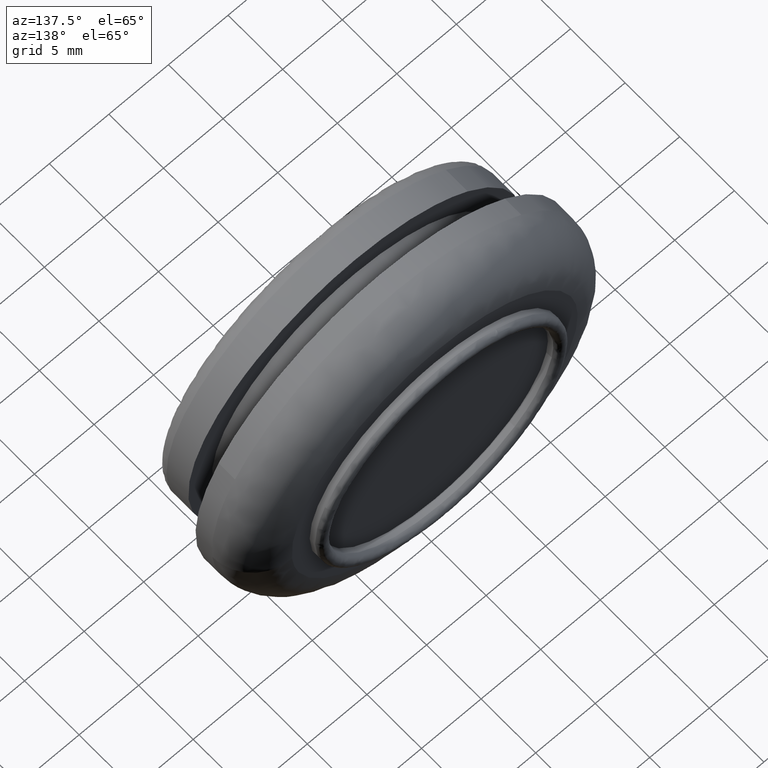
[diagram: clean part render]
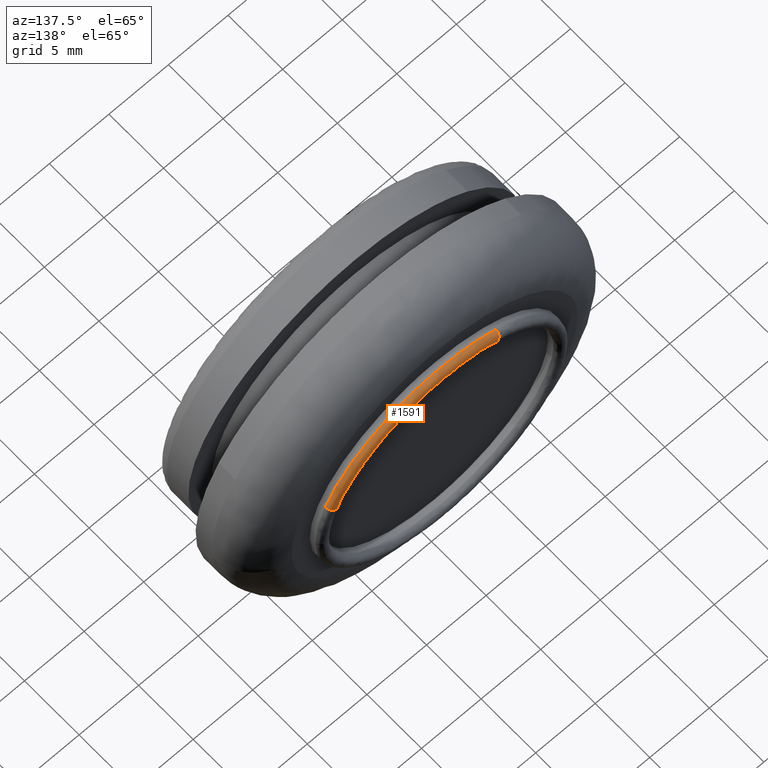
[diagram: same view with one face highlighted and labeled with its STEP entity id]
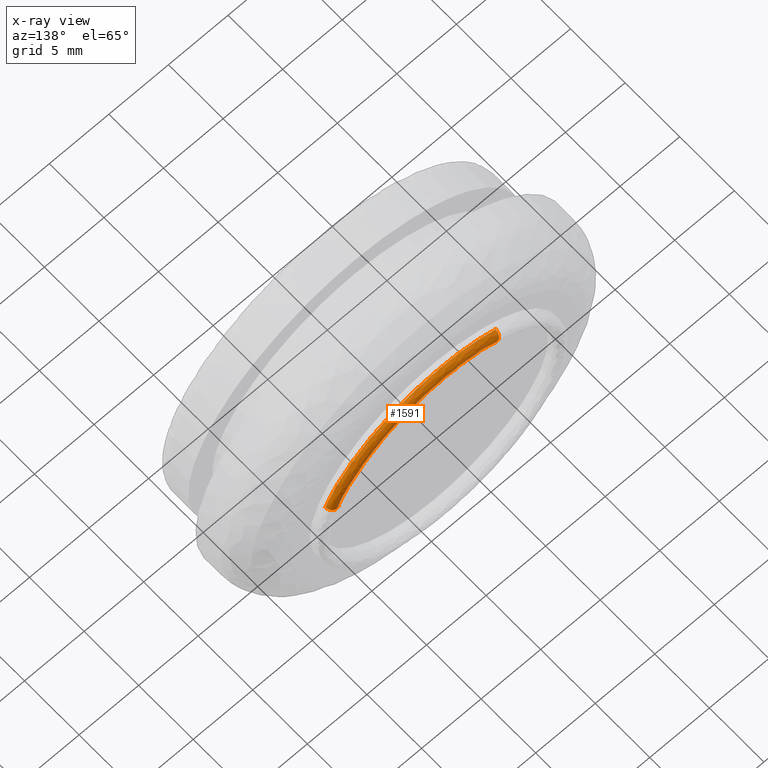
[diagram: x-ray of the same camera — body ghosted, the highlighted face saturated]
A machine part, auxiliary view. The second image highlights one B-rep face of the part: STEP entity #1591.
The next image is the same camera in x-ray: the body ghosted, the highlighted face saturated — about 0% of this face is hidden behind the body in this view.
In plain terms, the highlighted face is a freeform B-spline surface patch.
Its self-contained STEP definition (entity closure, byte-faithful):
#552=CARTESIAN_POINT('',(-4.211950693794776,10.799999999954050,8.515249341800960));
#553=VERTEX_POINT('',#552);
#569=CARTESIAN_POINT('',(0.0,10.800000000000001,9.500000000000000));
#570=VERTEX_POINT('',#569);
#571=CARTESIAN_POINT('',(0.0,10.800000000000001,9.500000000000000));
#572=CARTESIAN_POINT('',(-2.221092299745306,10.800000000000001,9.500000000000000));
#573=CARTESIAN_POINT('',(-4.211950693794776,10.799999999954053,8.515249341800962));
#581=(BOUNDED_CURVE()B_SPLINE_CURVE(2,(#571,#572,#573),.UNSPECIFIED.,.F.,.U.)B_SPLINE_CURVE_WITH_KNOTS((3,3),(0.500000000000000,0.575362209163525),.UNSPECIFIED.)CURVE()GEOMETRIC_REPRESENTATION_ITEM()RATIONAL_B_SPLINE_CURVE((1.0,0.911707679924810,0.876646594193935))REPRESENTATION_ITEM(''));
#582=EDGE_CURVE('',#570,#553,#581,.T.);
#584=CARTESIAN_POINT('',(8.742202549975399,10.799999999956080,3.718049834954288));
#585=VERTEX_POINT('',#584);
#586=CARTESIAN_POINT('',(8.742202549975399,10.799999999956080,3.718049834954288));
#587=CARTESIAN_POINT('',(6.283145037411986,10.800000000000001,9.499999999999998));
#588=CARTESIAN_POINT('',(0.0,10.800000000000001,9.500000000000000));
#596=(BOUNDED_CURVE()B_SPLINE_CURVE(2,(#586,#587,#588),.UNSPECIFIED.,.F.,.U.)B_SPLINE_CURVE_WITH_KNOTS((3,3),(0.316449865337022,0.500000000000000),.UNSPECIFIED.)CURVE()GEOMETRIC_REPRESENTATION_ITEM()RATIONAL_B_SPLINE_CURVE((0.885683713610749,0.784957640979671,1.0))REPRESENTATION_ITEM(''));
#597=EDGE_CURVE('',#585,#570,#596,.T.);
#709=CARTESIAN_POINT('',(9.662434397341063,10.800000000181161,4.109423501791973));
#710=VERTEX_POINT('',#709);
#726=CARTESIAN_POINT('',(0.0,10.800000000000001,10.500000000000000));
#727=VERTEX_POINT('',#726);
#728=CARTESIAN_POINT('',(9.662434397341063,10.800000000181157,4.109423501791972));
#729=CARTESIAN_POINT('',(6.944528725560004,10.800000000000001,10.500000000000002));
#730=CARTESIAN_POINT('',(0.0,10.800000000000001,10.500000000000000));
#738=(BOUNDED_CURVE()B_SPLINE_CURVE(2,(#728,#729,#730),.UNSPECIFIED.,.F.,.U.)B_SPLINE_CURVE_WITH_KNOTS((3,3),(0.316449865337035,0.500000000000000),.UNSPECIFIED.)CURVE()GEOMETRIC_REPRESENTATION_ITEM()RATIONAL_B_SPLINE_CURVE((0.885683713610735,0.784957640979686,1.0))REPRESENTATION_ITEM(''));
#739=EDGE_CURVE('',#710,#727,#738,.T.);
#741=CARTESIAN_POINT('',(-4.655313924719978,10.800000000181360,9.411591377780288));
#742=VERTEX_POINT('',#741);
#743=CARTESIAN_POINT('',(0.0,10.800000000000001,10.500000000000000));
#744=CARTESIAN_POINT('',(-2.454891489191547,10.799999999999999,10.500000000000000));
#745=CARTESIAN_POINT('',(-4.655313924719980,10.800000000181361,9.411591377780288));
#753=(BOUNDED_CURVE()B_SPLINE_CURVE(2,(#743,#744,#745),.UNSPECIFIED.,.F.,.U.)B_SPLINE_CURVE_WITH_KNOTS((3,3),(0.500000000000000,0.575362209163508),.UNSPECIFIED.)CURVE()GEOMETRIC_REPRESENTATION_ITEM()RATIONAL_B_SPLINE_CURVE((1.0,0.911707679924830,0.876646594193951))REPRESENTATION_ITEM(''));
#754=EDGE_CURVE('',#727,#742,#753,.T.);
#1499=CARTESIAN_POINT('',(8.742202549975399,10.799999999956082,3.718049834954287));
#1500=CARTESIAN_POINT('',(8.742202549965958,10.860666034345041,3.718049834949250));
#1501=CARTESIAN_POINT('',(8.755553175505135,10.919571796058850,3.723727842384870));
#1502=CARTESIAN_POINT('',(8.858319423359932,11.372998048678532,3.767434222864051));
#1503=CARTESIAN_POINT('',(9.281615646480670,11.292518611120149,3.947461675158076));
#1504=CARTESIAN_POINT('',(9.662434397061494,11.220115227427101,4.109423501671480));
#1505=CARTESIAN_POINT('',(9.662434397341063,10.800000000181161,4.109423501791973));
#1513=(BOUNDED_CURVE()B_SPLINE_CURVE(2,(#1499,#1500,#1501,#1502,#1503,#1504,#1505),.UNSPECIFIED.,.F.,.U.)B_SPLINE_CURVE_WITH_KNOTS((3,2,2,3),(-4.339286584676316,-4.0,-2.0,-0.150748352822883),.UNSPECIFIED.)CURVE()GEOMETRIC_REPRESENTATION_ITEM()RATIONAL_B_SPLINE_CURVE((0.924166963550913,0.954337072399511,1.0,0.730829748874083,1.0,0.751118234867160,0.962481483858573))REPRESENTATION_ITEM(''));
#1514=EDGE_CURVE('',#585,#710,#1513,.T.);
#1520=CARTESIAN_POINT('',(-4.211950693794777,10.799999999954053,8.515249341800960));
#1521=CARTESIAN_POINT('',(-4.211950693788349,10.860666034343035,8.515249341791696));
#1522=CARTESIAN_POINT('',(-4.218382960277573,10.919571796058852,8.528253376494517));
#1523=CARTESIAN_POINT('',(-4.267895238959762,11.372998048678530,8.628351746373561));
#1524=CARTESIAN_POINT('',(-4.471837301667793,11.292518611120155,9.040658926939402));
#1525=CARTESIAN_POINT('',(-4.655313924583777,11.220115227427161,9.411591377507639));
#1526=CARTESIAN_POINT('',(-4.655313924719980,10.800000000181367,9.411591377780288));
#1534=(BOUNDED_CURVE()B_SPLINE_CURVE(2,(#1520,#1521,#1522,#1523,#1524,#1525,#1526),.UNSPECIFIED.,.F.,.U.)B_SPLINE_CURVE_WITH_KNOTS((3,2,2,3),(-4.339286584687305,-4.0,-2.0,-0.150748352824031),.UNSPECIFIED.)CURVE()GEOMETRIC_REPRESENTATION_ITEM()RATIONAL_B_SPLINE_CURVE((0.903378567772326,0.932870024182915,0.977505800795127,0.714390318918062,0.977505800795127,0.734222431665797,0.940831233629400))REPRESENTATION_ITEM(''));
#1535=EDGE_CURVE('',#553,#742,#1534,.T.);
#1540=CARTESIAN_POINT('',(8.747888229782280,10.721639579646904,3.720467948780612));
#1541=CARTESIAN_POINT('',(5.027420281001667,10.721639579646903,12.468356178562889));
#1542=CARTESIAN_POINT('',(-3.720467948780612,10.721639579646904,8.747888229782280));
#1543=CARTESIAN_POINT('',(-3.970828509976896,10.721639579646903,8.641410138258619));
#1544=CARTESIAN_POINT('',(-4.214689556429460,10.721639579646908,8.520787650305085));
#1545=CARTESIAN_POINT('',(8.733313895425789,10.821447425092384,3.714269499232123));
#1546=CARTESIAN_POINT('',(5.019044396193666,10.821447425092378,12.447583394657912));
#1547=CARTESIAN_POINT('',(-3.714269499232123,10.821447425092384,8.733313895425789));
#1548=CARTESIAN_POINT('',(-3.964212949643187,10.821447425092380,8.627013200693989));
#1549=CARTESIAN_POINT('',(-4.207667713764039,10.821447425092384,8.506591674666828));
#1550=CARTESIAN_POINT('',(8.755553175505135,10.919571796058850,3.723727842384870));
#1551=CARTESIAN_POINT('',(5.031825333120263,10.919571796058850,12.479281017890003));
#1552=CARTESIAN_POINT('',(-3.723727842384869,10.919571796058850,8.755553175505135));
#1553=CARTESIAN_POINT('',(-3.974307770822974,10.919571796058849,8.648981787317096));
#1554=CARTESIAN_POINT('',(-4.218382489608318,10.919571796058852,8.528253609304562));
#1555=CARTESIAN_POINT('',(8.858319423359932,11.372998048678532,3.767434222864051));
#1556=CARTESIAN_POINT('',(5.090885200495882,11.372998048678532,12.625753646223982));
#1557=CARTESIAN_POINT('',(-3.767434222864051,11.372998048678532,8.858319423359934));
#1558=CARTESIAN_POINT('',(-4.020955274326267,11.372998048678532,8.750497178547162));
#1559=CARTESIAN_POINT('',(-4.267894762766138,11.372998048678534,8.628351981916158));
#1560=CARTESIAN_POINT('',(9.281615646480670,11.292518611120149,3.947461675158076));
#1561=CARTESIAN_POINT('',(5.334153971322593,11.292518611120153,13.229077321638744));
#1562=CARTESIAN_POINT('',(-3.947461675158076,11.292518611120149,9.281615646480670));
#1563=CARTESIAN_POINT('',(-4.213097270975348,11.292518611120148,9.168641098300142));
#1564=CARTESIAN_POINT('',(-4.471836802719182,11.292518611120151,9.040659173737437));
#1565=CARTESIAN_POINT('',(9.704911869601409,11.212039173561772,4.127489127452102));
#1566=CARTESIAN_POINT('',(5.577422742149306,11.212039173561772,13.832400997053508));
#1567=CARTESIAN_POINT('',(-4.127489127452101,11.212039173561772,9.704911869601409));
#1568=CARTESIAN_POINT('',(-4.405239267624430,11.212039173561770,9.586785018053124));
#1569=CARTESIAN_POINT('',(-4.675778842672226,11.212039173561774,9.452966365558719));
#1570=CARTESIAN_POINT('',(9.659903751095543,10.747631623423869,4.108347220521250));
#1571=CARTESIAN_POINT('',(5.551556530574294,10.747631623423874,13.768250971616792));
#1572=CARTESIAN_POINT('',(-4.108347220521249,10.747631623423869,9.659903751095545));
#1573=CARTESIAN_POINT('',(-4.384809248921739,10.747631623423878,9.542324732171053));
#1574=CARTESIAN_POINT('',(-4.654094152374584,10.747631623423878,9.409126685597721));
#1582=(BOUNDED_SURFACE()B_SPLINE_SURFACE(2,2,((#1540,#1545,#1550,#1555,#1560,#1565,#1570),(#1541,#1546,#1551,#1556,#1561,#1566,#1571),(#1542,#1547,#1552,#1557,#1562,#1567,#1572),(#1543,#1548,#1553,#1558,#1563,#1568,#1573),(#1544,#1549,#1554,#1559,#1564,#1569,#1574)),.UNSPECIFIED.,.F.,.F.,.U.)B_SPLINE_SURFACE_WITH_KNOTS((3,2,3),(3,2,2,3),(0.0,17.392413254881269,18.088109121608600),(0.0,0.216304510933381,1.005012699794414,1.793720888655447),.UNSPECIFIED.)GEOMETRIC_REPRESENTATION_ITEM()RATIONAL_B_SPLINE_SURFACE(((0.892849957511705,0.926179618330468,1.0,0.730829748874083,1.0,0.730829748874083,1.0),(0.631340259538647,0.654907888718242,0.707106781186548,0.516774671321726,0.707106781186548,0.516774671321726,0.707106781186548),(0.892849957511705,0.926179618330468,1.0,0.730829748874083,1.0,0.730829748874083,1.0),(0.882389579568586,0.915328759494174,0.988284282420452,0.722267553937542,0.988284282420452,0.722267553937542,0.988284282420452),(0.872766031062852,0.905345968536929,0.977505821353428,0.714390333942681,0.977505821353428,0.714390333942681,0.977505821353428)))REPRESENTATION_ITEM('')SURFACE());
#1583=ORIENTED_EDGE('',*,*,#582,.T.);
#1584=ORIENTED_EDGE('',*,*,#1535,.T.);
#1585=ORIENTED_EDGE('',*,*,#754,.F.);
#1586=ORIENTED_EDGE('',*,*,#739,.F.);
#1587=ORIENTED_EDGE('',*,*,#1514,.F.);
#1588=ORIENTED_EDGE('',*,*,#597,.T.);
#1589=EDGE_LOOP('',(#1583,#1584,#1585,#1586,#1587,#1588));
#1590=FACE_OUTER_BOUND('',#1589,.T.);
#1591=ADVANCED_FACE('',(#1590),#1582,.T.);